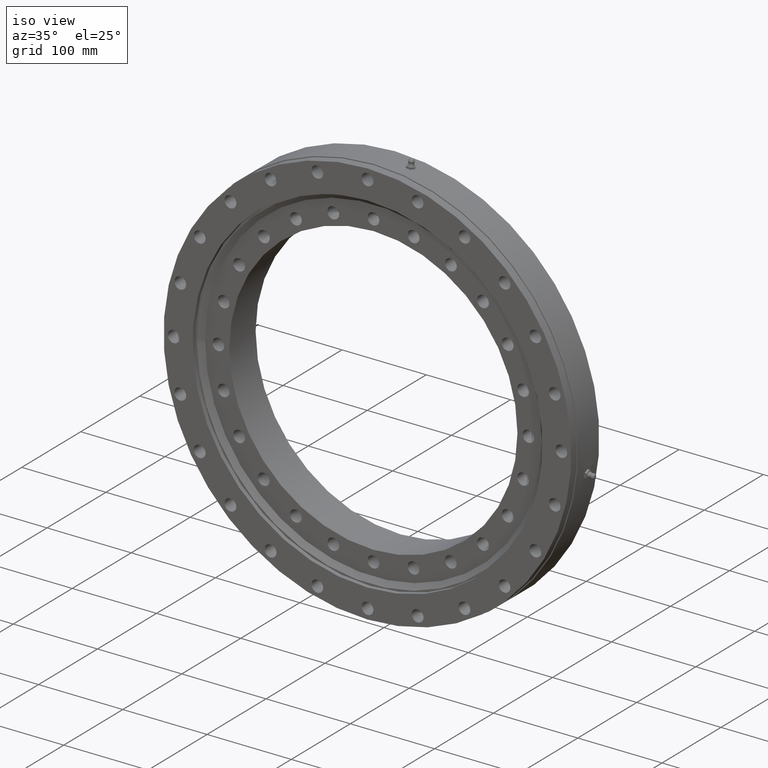
[diagram: clean part render]
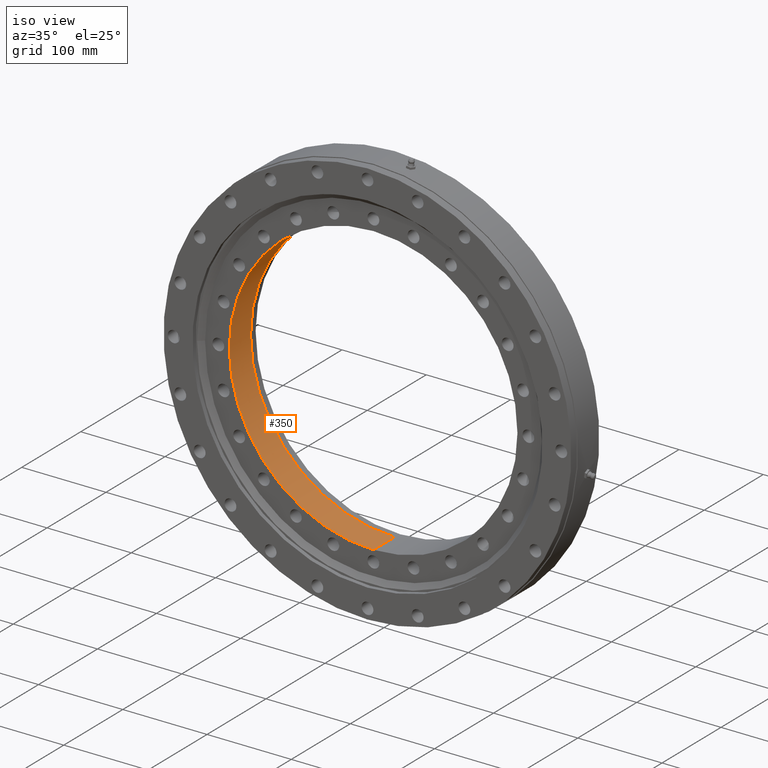
[diagram: tour spotlight — one face highlighted and labeled with its STEP entity id]
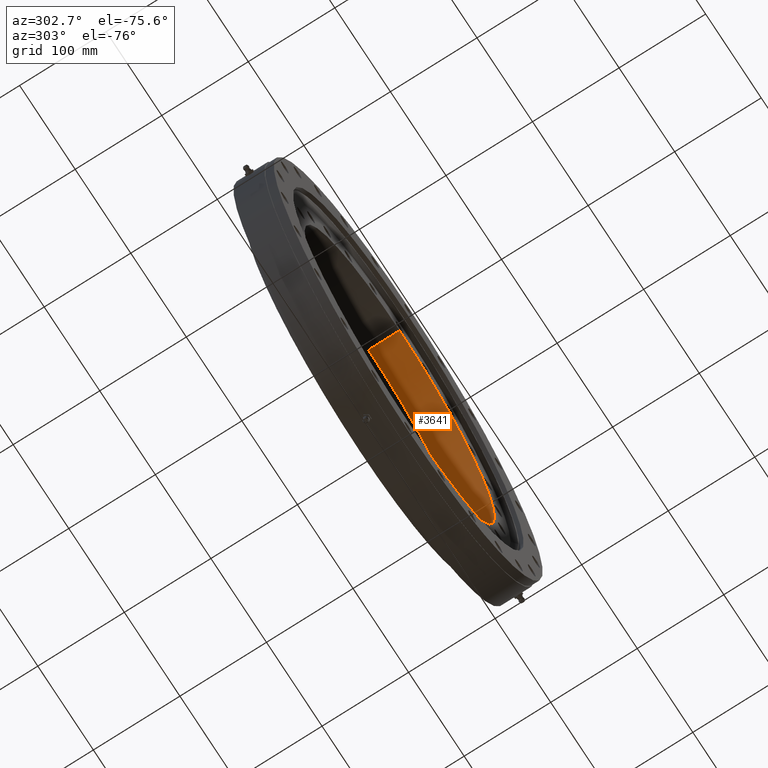
[diagram: tour spotlight — one face highlighted and labeled with its STEP entity id]
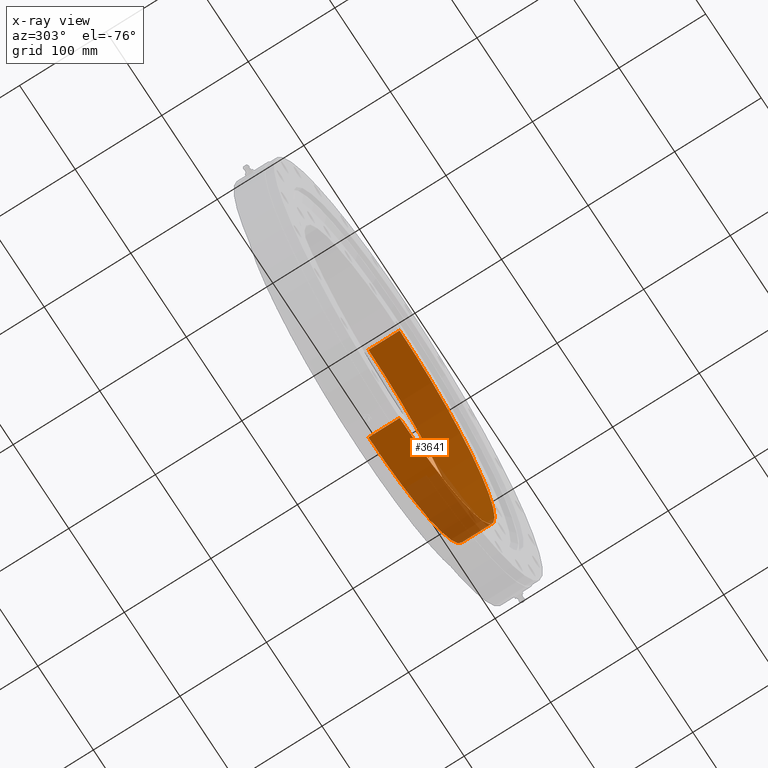
[diagram: x-ray of the same camera — body ghosted, this tour face saturated]
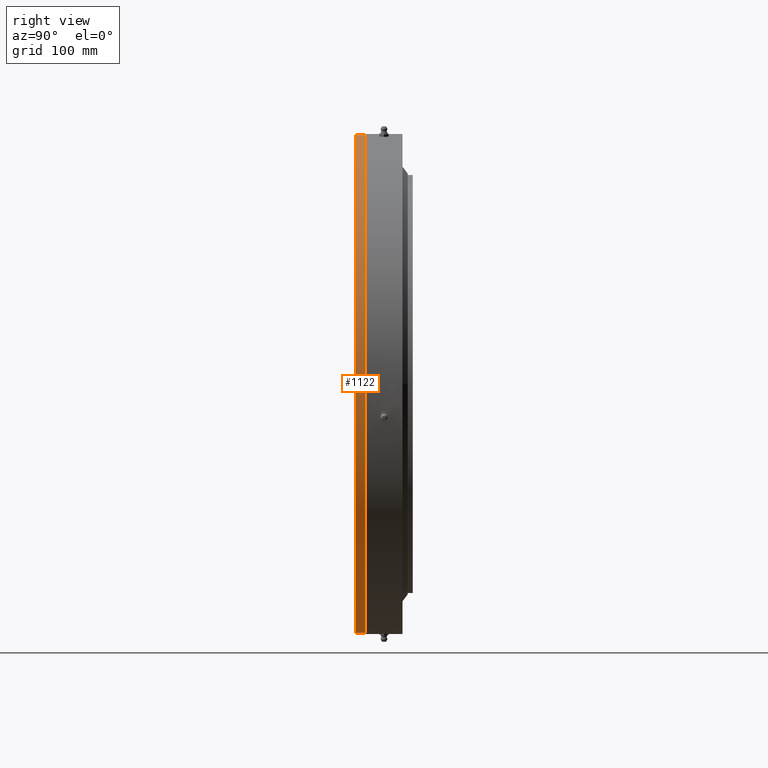
[diagram: tour spotlight — one face highlighted and labeled with its STEP entity id]
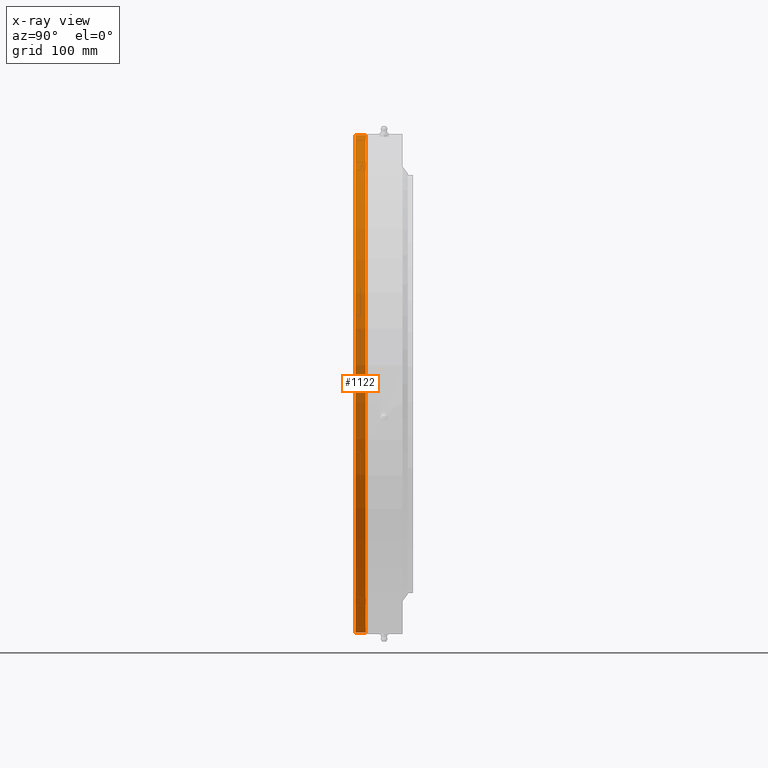
[diagram: x-ray of the same camera — body ghosted, this tour face saturated]
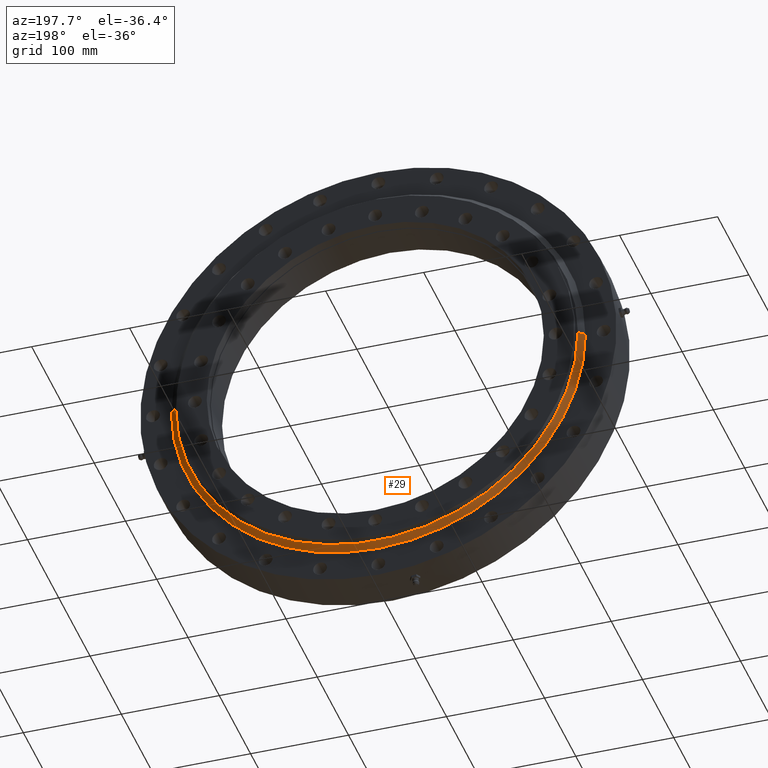
[diagram: tour spotlight — one face highlighted and labeled with its STEP entity id]
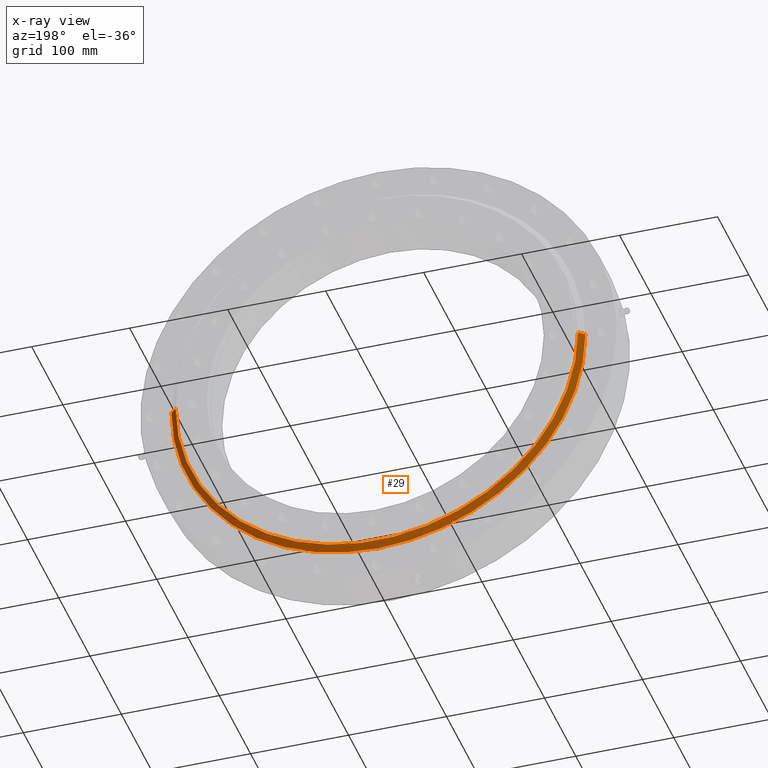
[diagram: x-ray of the same camera — body ghosted, this tour face saturated]
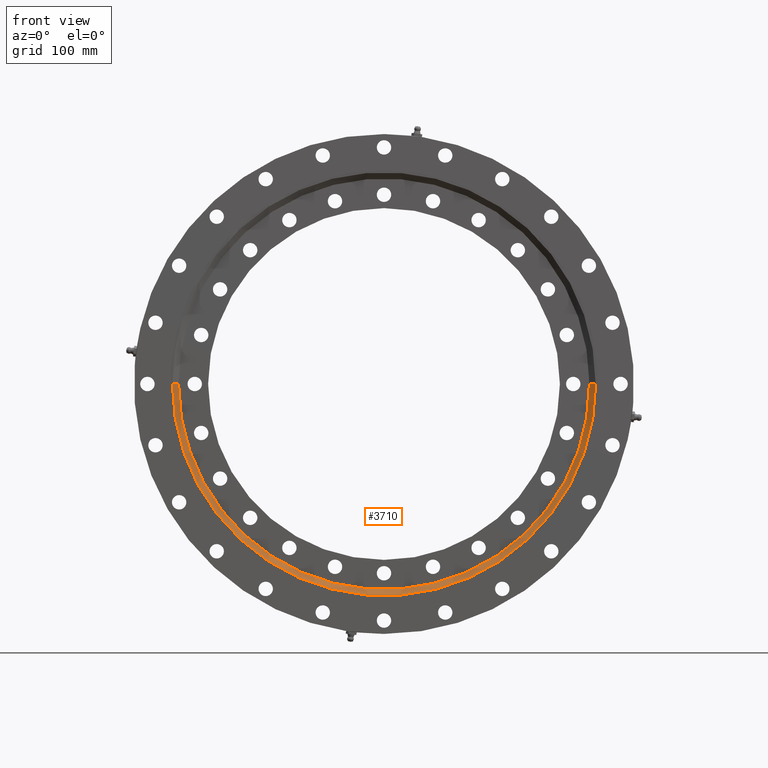
[diagram: tour spotlight — one face highlighted and labeled with its STEP entity id]
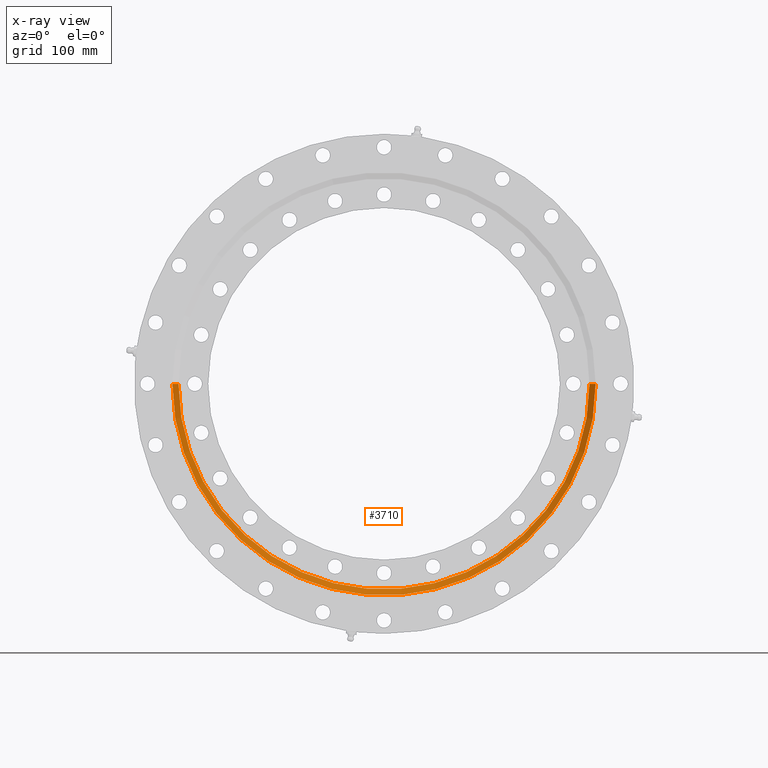
[diagram: x-ray of the same camera — body ghosted, this tour face saturated]
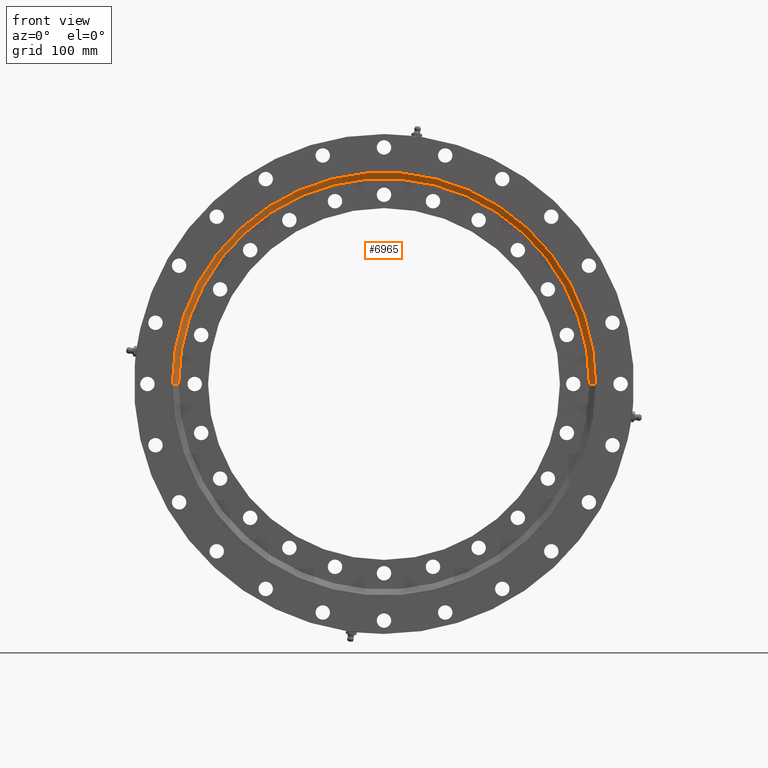
[diagram: tour spotlight — one face highlighted and labeled with its STEP entity id]
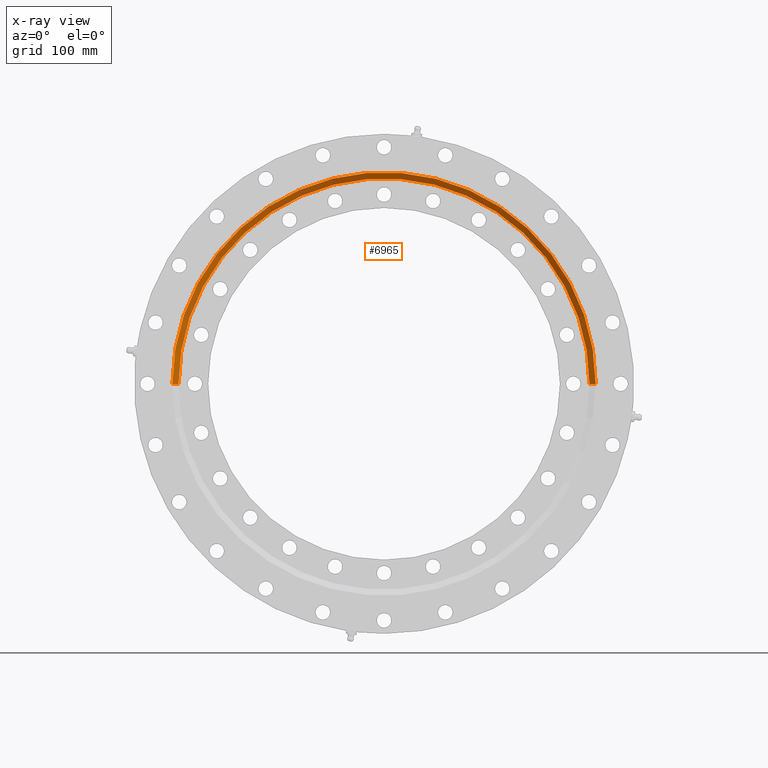
[diagram: x-ray of the same camera — body ghosted, this tour face saturated]
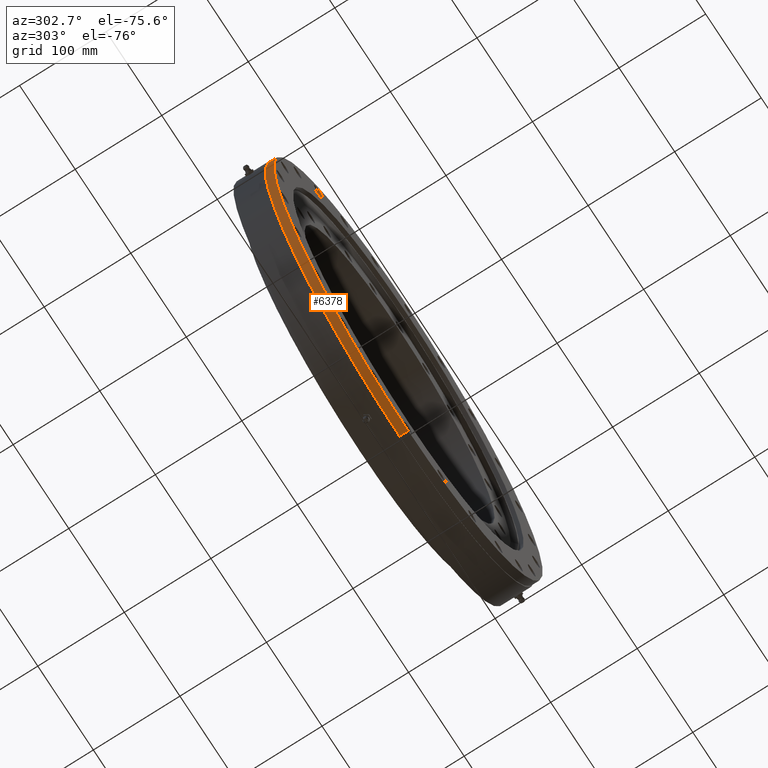
[diagram: tour spotlight — one face highlighted and labeled with its STEP entity id]
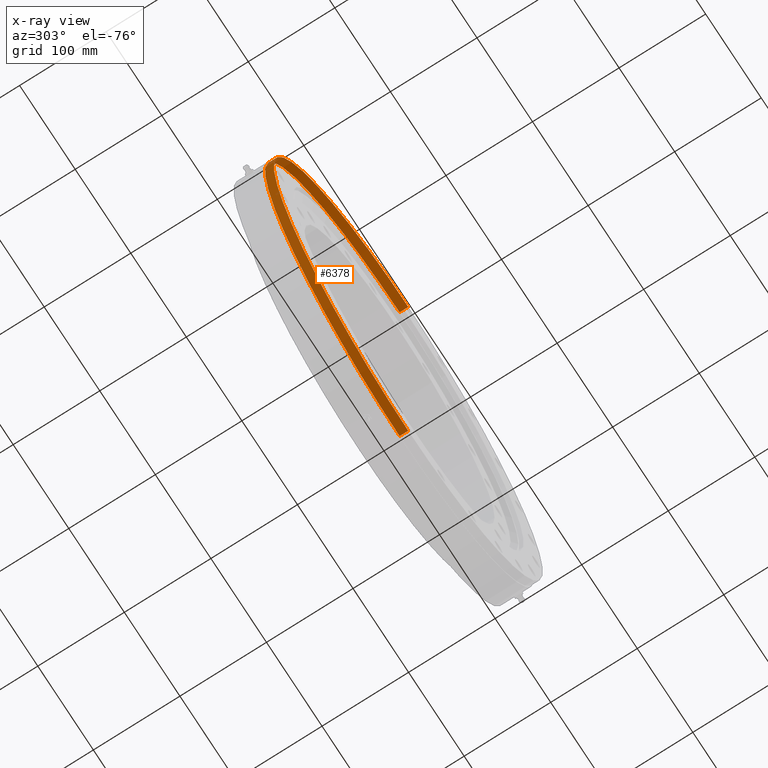
[diagram: x-ray of the same camera — body ghosted, this tour face saturated]
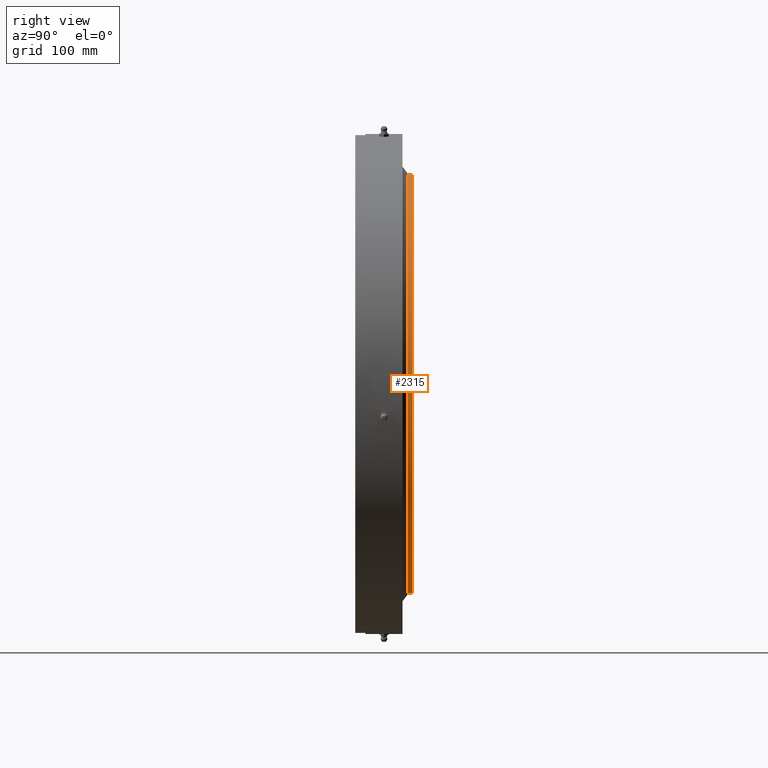
[diagram: tour spotlight — one face highlighted and labeled with its STEP entity id]
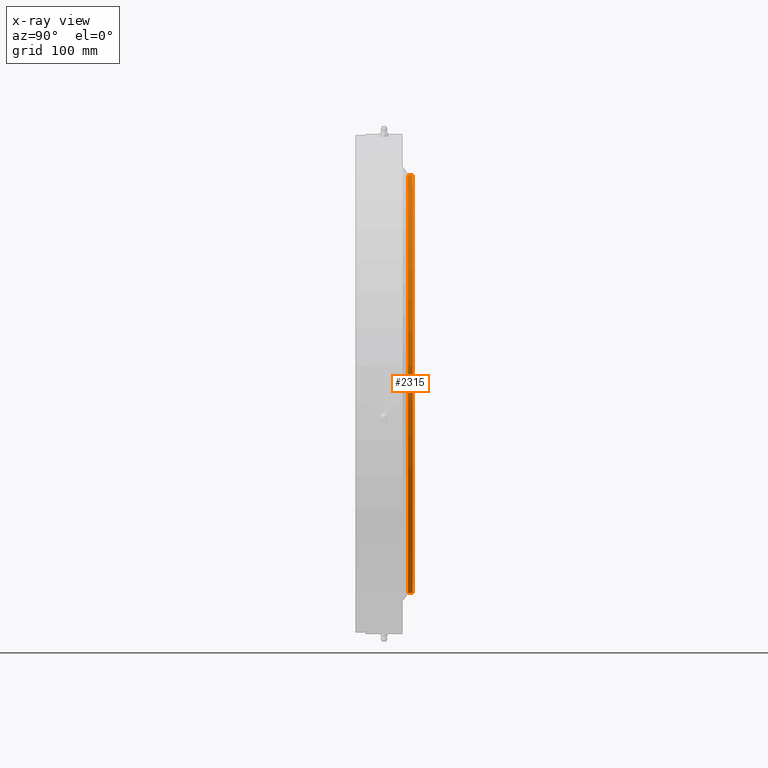
[diagram: x-ray of the same camera — body ghosted, this tour face saturated]
A machine part: a face-by-face anatomy tour. The part has 254 B-rep faces; the first image is the clean iso view, then the 8 largest visible faces are spotlighted one at a time (largest first), each with its STEP entity span.

Face 1 — iso view, entity #350. In plain terms, the highlighted cylindrical surface (partial cylindrical patch) has radius 171 mm, axis along (-0, 1, -0).
Definition (entity closure, byte-faithful):
#296 = CARTESIAN_POINT ( 'NONE',  ( 0.0000000000000000000, 31.02910628019324700, 171.0000000000000300 ) ) ;
#303 = VERTEX_POINT ( 'NONE', #852 ) ;
#350 = ADVANCED_FACE ( 'NONE', ( #2682 ), #1728, .F. ) ;
#559 = DIRECTION ( 'NONE',  ( 0.0000000000000000000, 2.028916346171703900E-017, 1.000000000000000000 ) ) ;
#852 = CARTESIAN_POINT ( 'NONE',  ( 2.094146026541974500E-014, 17.99999999999997900, -171.0000000000000300 ) ) ;
#977 = AXIS2_PLACEMENT_3D ( 'NONE', #1427, #2629, #559 ) ;
#1334 = ORIENTED_EDGE ( 'NONE', *, *, #8276, .F. ) ;
#1427 = CARTESIAN_POINT ( 'NONE',  ( 0.0000000000000000000, 31.02910628019324300, -1.692367527159823000E-015 ) ) ;
#1586 = DIRECTION ( 'NONE',  ( -0.0000000000000000000, 1.000000000000000000, -2.727064569436389700E-017 ) ) ;
#1728 = CYLINDRICAL_SURFACE ( 'NONE', #977, 171.0000000000000300 ) ;
#2629 = DIRECTION ( 'NONE',  ( -0.0000000000000000000, 1.000000000000000000, -2.727064569436389700E-017 ) ) ;
#2682 = FACE_OUTER_BOUND ( 'NONE', #4037, .T. ) ;
#2695 = VERTEX_POINT ( 'NONE', #5361 ) ;
#2775 = DIRECTION ( 'NONE',  ( 0.0000000000000000000, 2.028916346171703900E-017, 1.000000000000000000 ) ) ;
#2927 = LINE ( 'NONE', #296, #6283 ) ;
#3016 = CIRCLE ( 'NONE', #5902, 171.0000000000000300 ) ;
#3168 = LINE ( 'NONE', #3446, #6942 ) ;
#3169 = AXIS2_PLACEMENT_3D ( 'NONE', #5408, #7829, #2775 ) ;
#3345 = ORIENTED_EDGE ( 'NONE', *, *, #7060, .F. ) ;
#3446 = CARTESIAN_POINT ( 'NONE',  ( 2.094146026541974500E-014, 31.02910628019324000, -171.0000000000000300 ) ) ;
#3976 = DIRECTION ( 'NONE',  ( -0.0000000000000000000, 1.000000000000000000, -2.727064569436389700E-017 ) ) ;
#4037 = EDGE_LOOP ( 'NONE', ( #4612, #4398, #1334, #3345 ) ) ;
#4398 = ORIENTED_EDGE ( 'NONE', *, *, #4966, .T. ) ;
#4612 = ORIENTED_EDGE ( 'NONE', *, *, #6270, .F. ) ;
#4966 = EDGE_CURVE ( 'NONE', #7219, #303, #3168, .T. ) ;
#5342 = CARTESIAN_POINT ( 'NONE',  ( 0.0000000000000000000, -18.00000000000001400, 171.0000000000000300 ) ) ;
#5361 = CARTESIAN_POINT ( 'NONE',  ( 0.0000000000000000000, 17.99999999999997900, 171.0000000000000300 ) ) ;
#5408 = CARTESIAN_POINT ( 'NONE',  ( 0.0000000000000000000, -18.00000000000001400, -3.553121410813607700E-016 ) ) ;
#5902 = AXIS2_PLACEMENT_3D ( 'NONE', #7465, #7482, #7484 ) ;
#6117 = CIRCLE ( 'NONE', #3169, 171.0000000000000300 ) ;
#6157 = VERTEX_POINT ( 'NONE', #5342 ) ;
#6270 = EDGE_CURVE ( 'NONE', #7219, #6157, #6117, .T. ) ;
#6283 = VECTOR ( 'NONE', #3976, 1000.000000000000000 ) ;
#6942 = VECTOR ( 'NONE', #1586, 1000.000000000000000 ) ;
#7060 = EDGE_CURVE ( 'NONE', #6157, #2695, #2927, .T. ) ;
#7219 = VERTEX_POINT ( 'NONE', #7995 ) ;
#7465 = CARTESIAN_POINT ( 'NONE',  ( 0.0000000000000000000, 17.99999999999997900, -1.337055386078460900E-015 ) ) ;
#7482 = DIRECTION ( 'NONE',  ( 0.0000000000000000000, -1.000000000000000000, 0.0000000000000000000 ) ) ;
#7484 = DIRECTION ( 'NONE',  ( 0.0000000000000000000, 0.0000000000000000000, 1.000000000000000000 ) ) ;
#7829 = DIRECTION ( 'NONE',  ( -0.0000000000000000000, 1.000000000000000000, -2.727064569436389700E-017 ) ) ;
#7995 = CARTESIAN_POINT ( 'NONE',  ( 2.094146026541974500E-014, -18.00000000000001800, -171.0000000000000300 ) ) ;
#8276 = EDGE_CURVE ( 'NONE', #2695, #303, #3016, .T. ) ;

Face 2 — auxiliary view, entity #3641. An x-ray twin of the same camera follows (body ghosted, this face saturated) — the face is partly hidden behind the body. In plain terms, the highlighted cylindrical surface (partial cylindrical patch) has radius 171 mm, axis along (-0, 1, -0).
Definition (entity closure, byte-faithful):
#85 = CARTESIAN_POINT ( 'NONE',  ( 0.0000000000000000000, 31.02910628019324300, -1.692367527159823000E-015 ) ) ;
#296 = CARTESIAN_POINT ( 'NONE',  ( 0.0000000000000000000, 31.02910628019324700, 171.0000000000000300 ) ) ;
#303 = VERTEX_POINT ( 'NONE', #852 ) ;
#765 = DIRECTION ( 'NONE',  ( -0.0000000000000000000, 1.000000000000000000, -2.727064569436389700E-017 ) ) ;
#780 = DIRECTION ( 'NONE',  ( 0.0000000000000000000, 2.028916346171703900E-017, 1.000000000000000000 ) ) ;
#852 = CARTESIAN_POINT ( 'NONE',  ( 2.094146026541974500E-014, 17.99999999999997900, -171.0000000000000300 ) ) ;
#1172 = CARTESIAN_POINT ( 'NONE',  ( 0.0000000000000000000, 17.99999999999997900, -1.337055386078460900E-015 ) ) ;
#1322 = DIRECTION ( 'NONE',  ( 0.0000000000000000000, -1.000000000000000000, 0.0000000000000000000 ) ) ;
#1396 = DIRECTION ( 'NONE',  ( 0.0000000000000000000, 0.0000000000000000000, 1.000000000000000000 ) ) ;
#1503 = AXIS2_PLACEMENT_3D ( 'NONE', #1172, #1322, #1396 ) ;
#1561 = CYLINDRICAL_SURFACE ( 'NONE', #3439, 171.0000000000000300 ) ;
#1586 = DIRECTION ( 'NONE',  ( -0.0000000000000000000, 1.000000000000000000, -2.727064569436389700E-017 ) ) ;
#1696 = EDGE_CURVE ( 'NONE', #6157, #7219, #7750, .T. ) ;
#2075 = CARTESIAN_POINT ( 'NONE',  ( 0.0000000000000000000, -18.00000000000001400, -3.553121410813607700E-016 ) ) ;
#2109 = EDGE_CURVE ( 'NONE', #303, #2695, #6584, .T. ) ;
#2371 = EDGE_LOOP ( 'NONE', ( #4711, #3164, #6545, #4603 ) ) ;
#2695 = VERTEX_POINT ( 'NONE', #5361 ) ;
#2927 = LINE ( 'NONE', #296, #6283 ) ;
#3164 = ORIENTED_EDGE ( 'NONE', *, *, #1696, .F. ) ;
#3168 = LINE ( 'NONE', #3446, #6942 ) ;
#3439 = AXIS2_PLACEMENT_3D ( 'NONE', #85, #8110, #3901 ) ;
#3446 = CARTESIAN_POINT ( 'NONE',  ( 2.094146026541974500E-014, 31.02910628019324000, -171.0000000000000300 ) ) ;
#3641 = ADVANCED_FACE ( 'NONE', ( #5557 ), #1561, .F. ) ;
#3901 = DIRECTION ( 'NONE',  ( 0.0000000000000000000, 2.028916346171703900E-017, 1.000000000000000000 ) ) ;
#3976 = DIRECTION ( 'NONE',  ( -0.0000000000000000000, 1.000000000000000000, -2.727064569436389700E-017 ) ) ;
#4603 = ORIENTED_EDGE ( 'NONE', *, *, #2109, .F. ) ;
#4711 = ORIENTED_EDGE ( 'NONE', *, *, #4966, .F. ) ;
#4966 = EDGE_CURVE ( 'NONE', #7219, #303, #3168, .T. ) ;
#5342 = CARTESIAN_POINT ( 'NONE',  ( 0.0000000000000000000, -18.00000000000001400, 171.0000000000000300 ) ) ;
#5361 = CARTESIAN_POINT ( 'NONE',  ( 0.0000000000000000000, 17.99999999999997900, 171.0000000000000300 ) ) ;
#5557 = FACE_OUTER_BOUND ( 'NONE', #2371, .T. ) ;
#6070 = AXIS2_PLACEMENT_3D ( 'NONE', #2075, #765, #780 ) ;
#6157 = VERTEX_POINT ( 'NONE', #5342 ) ;
#6283 = VECTOR ( 'NONE', #3976, 1000.000000000000000 ) ;
#6545 = ORIENTED_EDGE ( 'NONE', *, *, #7060, .T. ) ;
#6584 = CIRCLE ( 'NONE', #1503, 171.0000000000000300 ) ;
#6942 = VECTOR ( 'NONE', #1586, 1000.000000000000000 ) ;
#7060 = EDGE_CURVE ( 'NONE', #6157, #2695, #2927, .T. ) ;
#7219 = VERTEX_POINT ( 'NONE', #7995 ) ;
#7750 = CIRCLE ( 'NONE', #6070, 171.0000000000000300 ) ;
#7995 = CARTESIAN_POINT ( 'NONE',  ( 2.094146026541974500E-014, -18.00000000000001800, -171.0000000000000300 ) ) ;
#8110 = DIRECTION ( 'NONE',  ( -0.0000000000000000000, 1.000000000000000000, -2.727064569436389700E-017 ) ) ;

Face 3 — right view, entity #1122. An x-ray twin of the same camera follows (body ghosted, this face saturated) — the face is partly hidden behind the body. In plain terms, the highlighted cylindrical surface (partial cylindrical patch) has radius 242 mm, axis along (-0, 1, -0).
Definition (entity closure, byte-faithful):
#232 = EDGE_CURVE ( 'NONE', #6480, #4976, #6424, .T. ) ;
#356 = CARTESIAN_POINT ( 'NONE',  ( 0.0000000000000000000, -28.00000000000002500, 242.0000000000000000 ) ) ;
#914 = CARTESIAN_POINT ( 'NONE',  ( 2.963645253936595000E-014, -28.00000000000002500, -242.0000000000000000 ) ) ;
#1122 = ADVANCED_FACE ( 'NONE', ( #1633 ), #4705, .T. ) ;
#1173 = ORIENTED_EDGE ( 'NONE', *, *, #2073, .T. ) ;
#1341 = AXIS2_PLACEMENT_3D ( 'NONE', #7196, #1494, #1449 ) ;
#1449 = DIRECTION ( 'NONE',  ( 0.0000000000000000000, 5.734623061080353400E-017, 1.000000000000000000 ) ) ;
#1494 = DIRECTION ( 'NONE',  ( -0.0000000000000000000, 1.000000000000000000, -5.328613396463909800E-017 ) ) ;
#1633 = FACE_OUTER_BOUND ( 'NONE', #7568, .T. ) ;
#1987 = DIRECTION ( 'NONE',  ( 0.0000000000000000000, -1.000000000000000000, 0.0000000000000000000 ) ) ;
#2044 = CARTESIAN_POINT ( 'NONE',  ( 2.963645253936595000E-014, 61.10955710955708000, -242.0000000000000000 ) ) ;
#2054 = DIRECTION ( 'NONE',  ( -0.0000000000000000000, 1.000000000000000000, -5.328613396463909800E-017 ) ) ;
#2073 = EDGE_CURVE ( 'NONE', #8083, #4976, #5668, .T. ) ;
#2649 = ORIENTED_EDGE ( 'NONE', *, *, #232, .F. ) ;
#2668 = CARTESIAN_POINT ( 'NONE',  ( 2.963645253936595000E-014, -18.00000000000005700, -242.0000000000000000 ) ) ;
#3521 = AXIS2_PLACEMENT_3D ( 'NONE', #6353, #1987, #5708 ) ;
#3956 = CARTESIAN_POINT ( 'NONE',  ( 0.0000000000000000000, -18.00000000000002800, 242.0000000000000000 ) ) ;
#4347 = VECTOR ( 'NONE', #7298, 1000.000000000000000 ) ;
#4405 = CIRCLE ( 'NONE', #3521, 242.0000000000000000 ) ;
#4639 = CARTESIAN_POINT ( 'NONE',  ( 0.0000000000000000000, 61.10955710955710900, 242.0000000000000000 ) ) ;
#4705 = CYLINDRICAL_SURFACE ( 'NONE', #8103, 242.0000000000000000 ) ;
#4940 = ORIENTED_EDGE ( 'NONE', *, *, #5784, .F. ) ;
#4976 = VERTEX_POINT ( 'NONE', #2668 ) ;
#5449 = VECTOR ( 'NONE', #2054, 1000.000000000000000 ) ;
#5668 = LINE ( 'NONE', #2044, #5449 ) ;
#5708 = DIRECTION ( 'NONE',  ( 0.0000000000000000000, 0.0000000000000000000, 1.000000000000000000 ) ) ;
#5784 = EDGE_CURVE ( 'NONE', #8083, #6168, #4405, .T. ) ;
#5893 = LINE ( 'NONE', #4639, #4347 ) ;
#6168 = VERTEX_POINT ( 'NONE', #356 ) ;
#6353 = CARTESIAN_POINT ( 'NONE',  ( 0.0000000000000000000, -28.00000000000002500, -1.764280295649726400E-015 ) ) ;
#6424 = CIRCLE ( 'NONE', #1341, 242.0000000000000000 ) ;
#6480 = VERTEX_POINT ( 'NONE', #3956 ) ;
#7196 = CARTESIAN_POINT ( 'NONE',  ( 0.0000000000000000000, -18.00000000000004300, -2.297141635296116900E-015 ) ) ;
#7216 = EDGE_CURVE ( 'NONE', #6168, #6480, #5893, .T. ) ;
#7298 = DIRECTION ( 'NONE',  ( -0.0000000000000000000, 1.000000000000000000, -5.328613396463909800E-017 ) ) ;
#7356 = CARTESIAN_POINT ( 'NONE',  ( 0.0000000000000000000, 61.10955710955709500, -6.512584093319245700E-015 ) ) ;
#7364 = DIRECTION ( 'NONE',  ( 0.0000000000000000000, 5.734623061080353400E-017, 1.000000000000000000 ) ) ;
#7568 = EDGE_LOOP ( 'NONE', ( #4940, #1173, #2649, #8174 ) ) ;
#8083 = VERTEX_POINT ( 'NONE', #914 ) ;
#8103 = AXIS2_PLACEMENT_3D ( 'NONE', #7356, #8144, #7364 ) ;
#8144 = DIRECTION ( 'NONE',  ( -0.0000000000000000000, 1.000000000000000000, -5.328613396463909800E-017 ) ) ;
#8174 = ORIENTED_EDGE ( 'NONE', *, *, #7216, .F. ) ;

Face 4 — auxiliary view, entity #29. An x-ray twin of the same camera follows (body ghosted, this face saturated) — the face is partly hidden behind the body. In plain terms, the highlighted conical surface has half-angle 49.914 deg.
Definition (entity closure, byte-faithful):
#29 = ADVANCED_FACE ( 'NONE', ( #930 ), #727, .T. ) ;
#131 = DIRECTION ( 'NONE',  ( -1.836909530733565900E-016, -1.000000000000000000, 0.0000000000000000000 ) ) ;
#389 = VERTEX_POINT ( 'NONE', #5437 ) ;
#483 = VERTEX_POINT ( 'NONE', #4991 ) ;
#711 = DIRECTION ( 'NONE',  ( 1.000000000000000000, -1.806575927644485600E-016, 0.0000000000000000000 ) ) ;
#727 = CONICAL_SURFACE ( 'NONE', #1831, 211.2500000000000000, 0.8711601305813067000 ) ;
#871 = ORIENTED_EDGE ( 'NONE', *, *, #6377, .T. ) ;
#930 = FACE_OUTER_BOUND ( 'NONE', #7491, .T. ) ;
#1407 = VECTOR ( 'NONE', #6893, 999.9999999999998900 ) ;
#1831 = AXIS2_PLACEMENT_3D ( 'NONE', #2573, #131, #711 ) ;
#1934 = ORIENTED_EDGE ( 'NONE', *, *, #2284, .F. ) ;
#2104 = CARTESIAN_POINT ( 'NONE',  ( -2.489123338632561600E-015, 17.99999999999996100, 0.0000000000000000000 ) ) ;
#2284 = EDGE_CURVE ( 'NONE', #483, #6206, #7578, .T. ) ;
#2367 = CIRCLE ( 'NONE', #2807, 205.2500000000000000 ) ;
#2409 = CARTESIAN_POINT ( 'NONE',  ( 205.2500000000000000, 23.04999999999995800, 0.0000000000000000000 ) ) ;
#2573 = CARTESIAN_POINT ( 'NONE',  ( -2.489123338632561600E-015, 17.99999999999996100, 0.0000000000000000000 ) ) ;
#2807 = AXIS2_PLACEMENT_3D ( 'NONE', #7448, #2921, #6731 ) ;
#2818 = CARTESIAN_POINT ( 'NONE',  ( -211.2500000000000000, 18.00000000000000000, 2.587066363198783500E-014 ) ) ;
#2848 = DIRECTION ( 'NONE',  ( -0.7650765054985549900, -0.6439393921279544800, 9.369484935616476500E-017 ) ) ;
#2921 = DIRECTION ( 'NONE',  ( 1.836909530733565900E-016, 1.000000000000000000, -0.0000000000000000000 ) ) ;
#3060 = CARTESIAN_POINT ( 'NONE',  ( 211.2500000000000000, 17.99999999999992200, 0.0000000000000000000 ) ) ;
#3465 = VECTOR ( 'NONE', #2848, 1000.000000000000000 ) ;
#3504 = ORIENTED_EDGE ( 'NONE', *, *, #6782, .T. ) ;
#3697 = DIRECTION ( 'NONE',  ( -1.000000000000000000, 1.806575927644485600E-016, 0.0000000000000000000 ) ) ;
#4327 = DIRECTION ( 'NONE',  ( 1.836909530733565900E-016, 1.000000000000000000, -0.0000000000000000000 ) ) ;
#4991 = CARTESIAN_POINT ( 'NONE',  ( -205.2500000000000000, 23.05000000000003600, 2.550326959224362900E-014 ) ) ;
#5202 = CARTESIAN_POINT ( 'NONE',  ( -211.2500000000000000, 18.00000000000000000, 2.587066363198783800E-014 ) ) ;
#5437 = CARTESIAN_POINT ( 'NONE',  ( 211.2500000000000000, 17.99999999999992200, 0.0000000000000000000 ) ) ;
#6206 = VERTEX_POINT ( 'NONE', #5202 ) ;
#6377 = EDGE_CURVE ( 'NONE', #389, #6206, #7233, .T. ) ;
#6598 = LINE ( 'NONE', #3060, #1407 ) ;
#6731 = DIRECTION ( 'NONE',  ( -1.000000000000000000, 1.859386917003154900E-016, 0.0000000000000000000 ) ) ;
#6782 = EDGE_CURVE ( 'NONE', #6841, #389, #6598, .T. ) ;
#6841 = VERTEX_POINT ( 'NONE', #2409 ) ;
#6893 = DIRECTION ( 'NONE',  ( 0.7650765054985548800, -0.6439393921279547000, 0.0000000000000000000 ) ) ;
#7233 = CIRCLE ( 'NONE', #7601, 211.2500000000000000 ) ;
#7302 = EDGE_CURVE ( 'NONE', #6841, #483, #2367, .T. ) ;
#7448 = CARTESIAN_POINT ( 'NONE',  ( -1.561484025612103900E-015, 23.04999999999999700, 0.0000000000000000000 ) ) ;
#7491 = EDGE_LOOP ( 'NONE', ( #1934, #7927, #3504, #871 ) ) ;
#7578 = LINE ( 'NONE', #2818, #3465 ) ;
#7601 = AXIS2_PLACEMENT_3D ( 'NONE', #2104, #4327, #3697 ) ;
#7927 = ORIENTED_EDGE ( 'NONE', *, *, #7302, .F. ) ;

Face 5 — front view, entity #3710. An x-ray twin of the same camera follows (body ghosted, this face saturated) — the face is partly hidden behind the body. In plain terms, the highlighted conical surface has half-angle 49.914 deg.
Definition (entity closure, byte-faithful):
#220 = VERTEX_POINT ( 'NONE', #6195 ) ;
#857 = VECTOR ( 'NONE', #6587, 1000.000000000000000 ) ;
#878 = EDGE_CURVE ( 'NONE', #3972, #2470, #7835, .T. ) ;
#1078 = AXIS2_PLACEMENT_3D ( 'NONE', #1819, #1985, #1839 ) ;
#1199 = FACE_OUTER_BOUND ( 'NONE', #2363, .T. ) ;
#1230 = AXIS2_PLACEMENT_3D ( 'NONE', #2939, #5296, #5304 ) ;
#1312 = LINE ( 'NONE', #7287, #857 ) ;
#1819 = CARTESIAN_POINT ( 'NONE',  ( -9.756709780624419700E-015, -23.04999999999998600, 0.0000000000000000000 ) ) ;
#1839 = DIRECTION ( 'NONE',  ( -1.000000000000000000, 1.854868358274107200E-016, 0.0000000000000000000 ) ) ;
#1985 = DIRECTION ( 'NONE',  ( 1.786923420260216300E-016, 1.000000000000000000, -0.0000000000000000000 ) ) ;
#2140 = EDGE_CURVE ( 'NONE', #220, #2683, #5049, .T. ) ;
#2363 = EDGE_LOOP ( 'NONE', ( #5142, #3856, #2389, #3012 ) ) ;
#2389 = ORIENTED_EDGE ( 'NONE', *, *, #2140, .F. ) ;
#2470 = VERTEX_POINT ( 'NONE', #2928 ) ;
#2557 = EDGE_CURVE ( 'NONE', #2470, #2683, #7015, .T. ) ;
#2683 = VERTEX_POINT ( 'NONE', #5213 ) ;
#2928 = CARTESIAN_POINT ( 'NONE',  ( -199.7499999999999700, -18.00000000000000400, 2.482971385271258300E-014 ) ) ;
#2939 = CARTESIAN_POINT ( 'NONE',  ( -9.756709780624419700E-015, -23.04999999999998600, 0.0000000000000000000 ) ) ;
#3012 = ORIENTED_EDGE ( 'NONE', *, *, #6330, .F. ) ;
#3032 = CONICAL_SURFACE ( 'NONE', #1230, 205.7500000000000000, 0.8711601305813152500 ) ;
#3710 = ADVANCED_FACE ( 'NONE', ( #1199 ), #3032, .F. ) ;
#3770 = DIRECTION ( 'NONE',  ( -0.7650765054985604300, -0.6439393921279478200, 9.369484935616543000E-017 ) ) ;
#3856 = ORIENTED_EDGE ( 'NONE', *, *, #2557, .T. ) ;
#3936 = CARTESIAN_POINT ( 'NONE',  ( -205.7500000000000000, -23.04999999999994700, 2.519710789245679100E-014 ) ) ;
#3972 = VERTEX_POINT ( 'NONE', #8069 ) ;
#5049 = CIRCLE ( 'NONE', #1078, 205.7500000000000000 ) ;
#5142 = ORIENTED_EDGE ( 'NONE', *, *, #878, .T. ) ;
#5213 = CARTESIAN_POINT ( 'NONE',  ( -205.7500000000000000, -23.04999999999994700, 2.519710789245679100E-014 ) ) ;
#5296 = DIRECTION ( 'NONE',  ( -1.786923420260216300E-016, -1.000000000000000000, 0.0000000000000000000 ) ) ;
#5304 = DIRECTION ( 'NONE',  ( 1.000000000000000000, -1.854868358274107200E-016, 0.0000000000000000000 ) ) ;
#6072 = DIRECTION ( 'NONE',  ( 1.786923420260216300E-016, 1.000000000000000000, -0.0000000000000000000 ) ) ;
#6080 = DIRECTION ( 'NONE',  ( -1.000000000000000000, 1.736894594219581700E-016, 0.0000000000000000000 ) ) ;
#6095 = CARTESIAN_POINT ( 'NONE',  ( -8.854313453393018000E-015, -18.00000000000003600, 0.0000000000000000000 ) ) ;
#6114 = AXIS2_PLACEMENT_3D ( 'NONE', #6095, #6072, #6080 ) ;
#6195 = CARTESIAN_POINT ( 'NONE',  ( 205.7500000000000000, -23.05000000000002600, 0.0000000000000000000 ) ) ;
#6330 = EDGE_CURVE ( 'NONE', #3972, #220, #1312, .T. ) ;
#6587 = DIRECTION ( 'NONE',  ( 0.7650765054985603200, -0.6439393921279481500, 0.0000000000000000000 ) ) ;
#7015 = LINE ( 'NONE', #3936, #7870 ) ;
#7287 = CARTESIAN_POINT ( 'NONE',  ( 205.7500000000000000, -23.05000000000002600, 0.0000000000000000000 ) ) ;
#7835 = CIRCLE ( 'NONE', #6114, 199.7499999999999700 ) ;
#7870 = VECTOR ( 'NONE', #3770, 1000.000000000000100 ) ;
#8069 = CARTESIAN_POINT ( 'NONE',  ( 199.7499999999999700, -18.00000000000007100, 0.0000000000000000000 ) ) ;

Face 6 — front view, entity #6965. An x-ray twin of the same camera follows (body ghosted, this face saturated) — the face is partly hidden behind the body. In plain terms, the highlighted conical surface has half-angle 49.914 deg.
Definition (entity closure, byte-faithful):
#220 = VERTEX_POINT ( 'NONE', #6195 ) ;
#857 = VECTOR ( 'NONE', #6587, 1000.000000000000000 ) ;
#1012 = ORIENTED_EDGE ( 'NONE', *, *, #7440, .T. ) ;
#1058 = AXIS2_PLACEMENT_3D ( 'NONE', #3281, #8371, #4982 ) ;
#1185 = CIRCLE ( 'NONE', #5774, 199.7499999999999700 ) ;
#1186 = DIRECTION ( 'NONE',  ( 1.786923420260216300E-016, 1.000000000000000000, -0.0000000000000000000 ) ) ;
#1312 = LINE ( 'NONE', #7287, #857 ) ;
#1745 = CARTESIAN_POINT ( 'NONE',  ( -9.756709780624419700E-015, -23.04999999999998600, 0.0000000000000000000 ) ) ;
#2046 = DIRECTION ( 'NONE',  ( -1.000000000000000000, 1.736894594219581700E-016, 0.0000000000000000000 ) ) ;
#2083 = CONICAL_SURFACE ( 'NONE', #1058, 205.7500000000000000, 0.8711601305813152500 ) ;
#2464 = FACE_OUTER_BOUND ( 'NONE', #4947, .T. ) ;
#2470 = VERTEX_POINT ( 'NONE', #2928 ) ;
#2557 = EDGE_CURVE ( 'NONE', #2470, #2683, #7015, .T. ) ;
#2661 = DIRECTION ( 'NONE',  ( 1.786923420260216300E-016, 1.000000000000000000, -0.0000000000000000000 ) ) ;
#2683 = VERTEX_POINT ( 'NONE', #5213 ) ;
#2766 = AXIS2_PLACEMENT_3D ( 'NONE', #1745, #1186, #4733 ) ;
#2928 = CARTESIAN_POINT ( 'NONE',  ( -199.7499999999999700, -18.00000000000000400, 2.482971385271258300E-014 ) ) ;
#3281 = CARTESIAN_POINT ( 'NONE',  ( -9.756709780624419700E-015, -23.04999999999998600, 0.0000000000000000000 ) ) ;
#3380 = ORIENTED_EDGE ( 'NONE', *, *, #7696, .F. ) ;
#3668 = ORIENTED_EDGE ( 'NONE', *, *, #2557, .F. ) ;
#3770 = DIRECTION ( 'NONE',  ( -0.7650765054985604300, -0.6439393921279478200, 9.369484935616543000E-017 ) ) ;
#3936 = CARTESIAN_POINT ( 'NONE',  ( -205.7500000000000000, -23.04999999999994700, 2.519710789245679100E-014 ) ) ;
#3972 = VERTEX_POINT ( 'NONE', #8069 ) ;
#4590 = ORIENTED_EDGE ( 'NONE', *, *, #6330, .T. ) ;
#4733 = DIRECTION ( 'NONE',  ( -1.000000000000000000, 1.854868358274107200E-016, 0.0000000000000000000 ) ) ;
#4947 = EDGE_LOOP ( 'NONE', ( #3668, #1012, #4590, #3380 ) ) ;
#4982 = DIRECTION ( 'NONE',  ( 1.000000000000000000, -1.854868358274107200E-016, 0.0000000000000000000 ) ) ;
#5213 = CARTESIAN_POINT ( 'NONE',  ( -205.7500000000000000, -23.04999999999994700, 2.519710789245679100E-014 ) ) ;
#5774 = AXIS2_PLACEMENT_3D ( 'NONE', #7128, #2661, #2046 ) ;
#6195 = CARTESIAN_POINT ( 'NONE',  ( 205.7500000000000000, -23.05000000000002600, 0.0000000000000000000 ) ) ;
#6330 = EDGE_CURVE ( 'NONE', #3972, #220, #1312, .T. ) ;
#6587 = DIRECTION ( 'NONE',  ( 0.7650765054985603200, -0.6439393921279481500, 0.0000000000000000000 ) ) ;
#6965 = ADVANCED_FACE ( 'NONE', ( #2464 ), #2083, .F. ) ;
#7015 = LINE ( 'NONE', #3936, #7870 ) ;
#7128 = CARTESIAN_POINT ( 'NONE',  ( -8.854313453393018000E-015, -18.00000000000003600, 0.0000000000000000000 ) ) ;
#7287 = CARTESIAN_POINT ( 'NONE',  ( 205.7500000000000000, -23.05000000000002600, 0.0000000000000000000 ) ) ;
#7440 = EDGE_CURVE ( 'NONE', #2470, #3972, #1185, .T. ) ;
#7696 = EDGE_CURVE ( 'NONE', #2683, #220, #8323, .T. ) ;
#7870 = VECTOR ( 'NONE', #3770, 1000.000000000000100 ) ;
#8069 = CARTESIAN_POINT ( 'NONE',  ( 199.7499999999999700, -18.00000000000007100, 0.0000000000000000000 ) ) ;
#8323 = CIRCLE ( 'NONE', #2766, 205.7500000000000000 ) ;
#8371 = DIRECTION ( 'NONE',  ( -1.786923420260216300E-016, -1.000000000000000000, 0.0000000000000000000 ) ) ;

Face 7 — auxiliary view, entity #6378. An x-ray twin of the same camera follows (body ghosted, this face saturated) — the face is partly hidden behind the body. In plain terms, the highlighted cylindrical surface (partial cylindrical patch) has radius 242 mm, axis along (-0, 1, -0).
Definition (entity closure, byte-faithful):
#132 = DIRECTION ( 'NONE',  ( -0.0000000000000000000, 1.000000000000000000, -5.328613396463909800E-017 ) ) ;
#205 = DIRECTION ( 'NONE',  ( 0.0000000000000000000, 0.0000000000000000000, 1.000000000000000000 ) ) ;
#356 = CARTESIAN_POINT ( 'NONE',  ( 0.0000000000000000000, -28.00000000000002500, 242.0000000000000000 ) ) ;
#731 = EDGE_LOOP ( 'NONE', ( #1412, #3833, #5653, #4727 ) ) ;
#914 = CARTESIAN_POINT ( 'NONE',  ( 2.963645253936595000E-014, -28.00000000000002500, -242.0000000000000000 ) ) ;
#1412 = ORIENTED_EDGE ( 'NONE', *, *, #2073, .F. ) ;
#1413 = CYLINDRICAL_SURFACE ( 'NONE', #2672, 242.0000000000000000 ) ;
#1493 = AXIS2_PLACEMENT_3D ( 'NONE', #2060, #2036, #205 ) ;
#1543 = CIRCLE ( 'NONE', #1493, 242.0000000000000000 ) ;
#2036 = DIRECTION ( 'NONE',  ( 0.0000000000000000000, -1.000000000000000000, 0.0000000000000000000 ) ) ;
#2044 = CARTESIAN_POINT ( 'NONE',  ( 2.963645253936595000E-014, 61.10955710955708000, -242.0000000000000000 ) ) ;
#2054 = DIRECTION ( 'NONE',  ( -0.0000000000000000000, 1.000000000000000000, -5.328613396463909800E-017 ) ) ;
#2060 = CARTESIAN_POINT ( 'NONE',  ( 0.0000000000000000000, -28.00000000000002500, -1.764280295649726400E-015 ) ) ;
#2073 = EDGE_CURVE ( 'NONE', #8083, #4976, #5668, .T. ) ;
#2668 = CARTESIAN_POINT ( 'NONE',  ( 2.963645253936595000E-014, -18.00000000000005700, -242.0000000000000000 ) ) ;
#2672 = AXIS2_PLACEMENT_3D ( 'NONE', #4229, #132, #4248 ) ;
#2948 = EDGE_CURVE ( 'NONE', #4976, #6480, #8335, .T. ) ;
#3833 = ORIENTED_EDGE ( 'NONE', *, *, #4000, .F. ) ;
#3956 = CARTESIAN_POINT ( 'NONE',  ( 0.0000000000000000000, -18.00000000000002800, 242.0000000000000000 ) ) ;
#4000 = EDGE_CURVE ( 'NONE', #6168, #8083, #1543, .T. ) ;
#4229 = CARTESIAN_POINT ( 'NONE',  ( 0.0000000000000000000, 61.10955710955709500, -6.512584093319245700E-015 ) ) ;
#4248 = DIRECTION ( 'NONE',  ( 0.0000000000000000000, 5.734623061080353400E-017, 1.000000000000000000 ) ) ;
#4347 = VECTOR ( 'NONE', #7298, 1000.000000000000000 ) ;
#4639 = CARTESIAN_POINT ( 'NONE',  ( 0.0000000000000000000, 61.10955710955710900, 242.0000000000000000 ) ) ;
#4727 = ORIENTED_EDGE ( 'NONE', *, *, #2948, .F. ) ;
#4976 = VERTEX_POINT ( 'NONE', #2668 ) ;
#5449 = VECTOR ( 'NONE', #2054, 1000.000000000000000 ) ;
#5653 = ORIENTED_EDGE ( 'NONE', *, *, #7216, .T. ) ;
#5668 = LINE ( 'NONE', #2044, #5449 ) ;
#5893 = LINE ( 'NONE', #4639, #4347 ) ;
#5955 = AXIS2_PLACEMENT_3D ( 'NONE', #7768, #8140, #7823 ) ;
#6168 = VERTEX_POINT ( 'NONE', #356 ) ;
#6378 = ADVANCED_FACE ( 'NONE', ( #7877 ), #1413, .T. ) ;
#6480 = VERTEX_POINT ( 'NONE', #3956 ) ;
#7216 = EDGE_CURVE ( 'NONE', #6168, #6480, #5893, .T. ) ;
#7298 = DIRECTION ( 'NONE',  ( -0.0000000000000000000, 1.000000000000000000, -5.328613396463909800E-017 ) ) ;
#7768 = CARTESIAN_POINT ( 'NONE',  ( 0.0000000000000000000, -18.00000000000004300, -2.297141635296116900E-015 ) ) ;
#7823 = DIRECTION ( 'NONE',  ( 0.0000000000000000000, 5.734623061080353400E-017, 1.000000000000000000 ) ) ;
#7877 = FACE_OUTER_BOUND ( 'NONE', #731, .T. ) ;
#8083 = VERTEX_POINT ( 'NONE', #914 ) ;
#8140 = DIRECTION ( 'NONE',  ( -0.0000000000000000000, 1.000000000000000000, -5.328613396463909800E-017 ) ) ;
#8335 = CIRCLE ( 'NONE', #5955, 242.0000000000000000 ) ;

Face 8 — right view, entity #2315. An x-ray twin of the same camera follows (body ghosted, this face saturated) — the face is partly hidden behind the body. In plain terms, the highlighted cylindrical surface (partial cylindrical patch) has radius 203.25 mm, axis along (-0, 1, -0).
Definition (entity closure, byte-faithful):
#63 = EDGE_CURVE ( 'NONE', #6319, #7323, #5721, .T. ) ;
#148 = DIRECTION ( 'NONE',  ( -0.0000000000000000000, 1.000000000000000000, -2.727064569436389700E-017 ) ) ;
#215 = VERTEX_POINT ( 'NONE', #7514 ) ;
#355 = ORIENTED_EDGE ( 'NONE', *, *, #63, .T. ) ;
#587 = FACE_OUTER_BOUND ( 'NONE', #1720, .T. ) ;
#1504 = VERTEX_POINT ( 'NONE', #2945 ) ;
#1601 = CARTESIAN_POINT ( 'NONE',  ( 0.0000000000000000000, 23.04999999999998600, 203.2500000000000000 ) ) ;
#1720 = EDGE_LOOP ( 'NONE', ( #355, #4301, #4514, #5841 ) ) ;
#1727 = AXIS2_PLACEMENT_3D ( 'NONE', #6722, #6694, #6701 ) ;
#1803 = EDGE_CURVE ( 'NONE', #7323, #215, #2826, .T. ) ;
#1855 = CARTESIAN_POINT ( 'NONE',  ( 2.489094619266995000E-014, 23.04999999999991900, -203.2500000000000000 ) ) ;
#2106 = CARTESIAN_POINT ( 'NONE',  ( 0.0000000000000000000, 31.02910628019324300, -1.692367527159823000E-015 ) ) ;
#2315 = ADVANCED_FACE ( 'NONE', ( #587 ), #4946, .T. ) ;
#2460 = VECTOR ( 'NONE', #148, 1000.000000000000000 ) ;
#2774 = EDGE_CURVE ( 'NONE', #1504, #215, #7785, .T. ) ;
#2826 = LINE ( 'NONE', #7928, #2460 ) ;
#2904 = CARTESIAN_POINT ( 'NONE',  ( 0.0000000000000000000, 31.02910628019325000, 203.2500000000000000 ) ) ;
#2945 = CARTESIAN_POINT ( 'NONE',  ( 0.0000000000000000000, 27.99999999999998900, 203.2500000000000000 ) ) ;
#3119 = VECTOR ( 'NONE', #3440, 1000.000000000000000 ) ;
#3432 = EDGE_CURVE ( 'NONE', #6319, #1504, #4762, .T. ) ;
#3440 = DIRECTION ( 'NONE',  ( -0.0000000000000000000, 1.000000000000000000, -2.727064569436389700E-017 ) ) ;
#3853 = AXIS2_PLACEMENT_3D ( 'NONE', #2106, #4890, #4879 ) ;
#4301 = ORIENTED_EDGE ( 'NONE', *, *, #1803, .T. ) ;
#4514 = ORIENTED_EDGE ( 'NONE', *, *, #2774, .F. ) ;
#4762 = LINE ( 'NONE', #2904, #3119 ) ;
#4879 = DIRECTION ( 'NONE',  ( 0.0000000000000000000, 3.413969940421760600E-017, 1.000000000000000000 ) ) ;
#4890 = DIRECTION ( 'NONE',  ( -0.0000000000000000000, 1.000000000000000000, -2.727064569436389700E-017 ) ) ;
#4946 = CYLINDRICAL_SURFACE ( 'NONE', #3853, 203.2500000000000000 ) ;
#5371 = CARTESIAN_POINT ( 'NONE',  ( 0.0000000000000000000, 27.99999999999998200, -1.609761843022100100E-015 ) ) ;
#5433 = AXIS2_PLACEMENT_3D ( 'NONE', #5371, #6470, #6426 ) ;
#5721 = CIRCLE ( 'NONE', #1727, 203.2500000000000000 ) ;
#5841 = ORIENTED_EDGE ( 'NONE', *, *, #3432, .F. ) ;
#6319 = VERTEX_POINT ( 'NONE', #1601 ) ;
#6426 = DIRECTION ( 'NONE',  ( 0.0000000000000000000, 3.413969940421760600E-017, 1.000000000000000000 ) ) ;
#6470 = DIRECTION ( 'NONE',  ( -0.0000000000000000000, 1.000000000000000000, -2.727064569436389700E-017 ) ) ;
#6694 = DIRECTION ( 'NONE',  ( -0.0000000000000000000, 1.000000000000000000, -1.770339596030613800E-016 ) ) ;
#6701 = DIRECTION ( 'NONE',  ( 0.0000000000000000000, 1.706984970210880300E-016, 1.000000000000000000 ) ) ;
#6722 = CARTESIAN_POINT ( 'NONE',  ( 0.0000000000000000000, 23.04999999999995100, -1.478547554885346000E-015 ) ) ;
#7323 = VERTEX_POINT ( 'NONE', #1855 ) ;
#7514 = CARTESIAN_POINT ( 'NONE',  ( 2.489094619266995000E-014, 27.99999999999997500, -203.2500000000000000 ) ) ;
#7785 = CIRCLE ( 'NONE', #5433, 203.2500000000000000 ) ;
#7928 = CARTESIAN_POINT ( 'NONE',  ( 2.489094619266995000E-014, 31.02910628019323600, -203.2500000000000000 ) ) ;